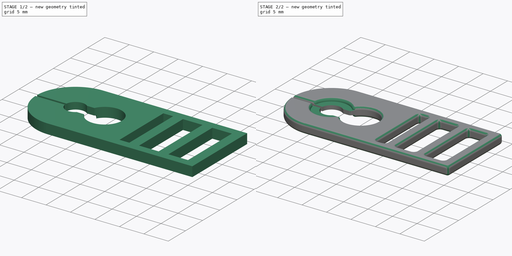
[diagram: build sequence overview — one tinted view per stage of 2, left to right]
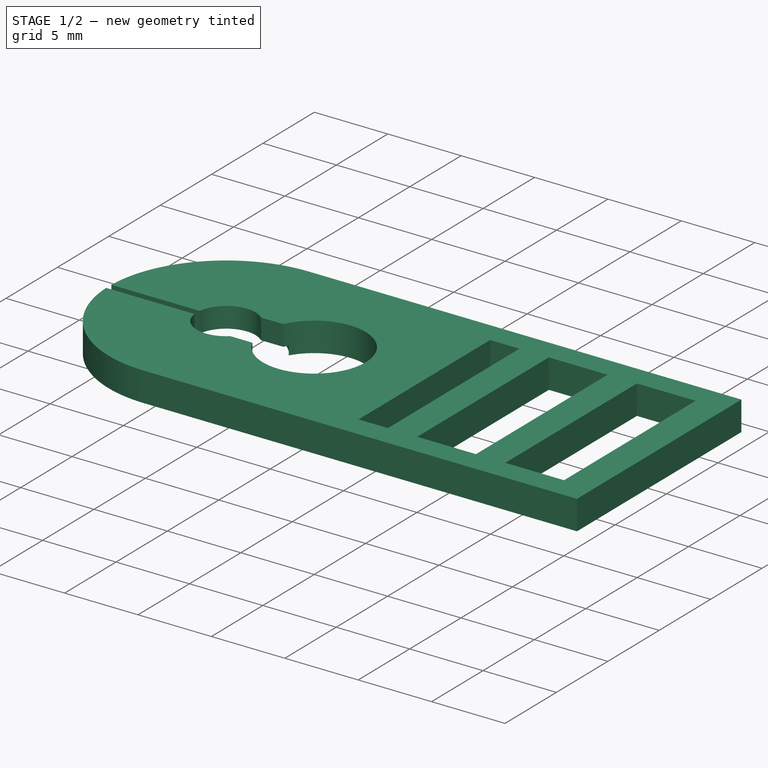
[diagram: stage 1 of 2 — iso view after this stage's code; geometry added in this stage tinted green]
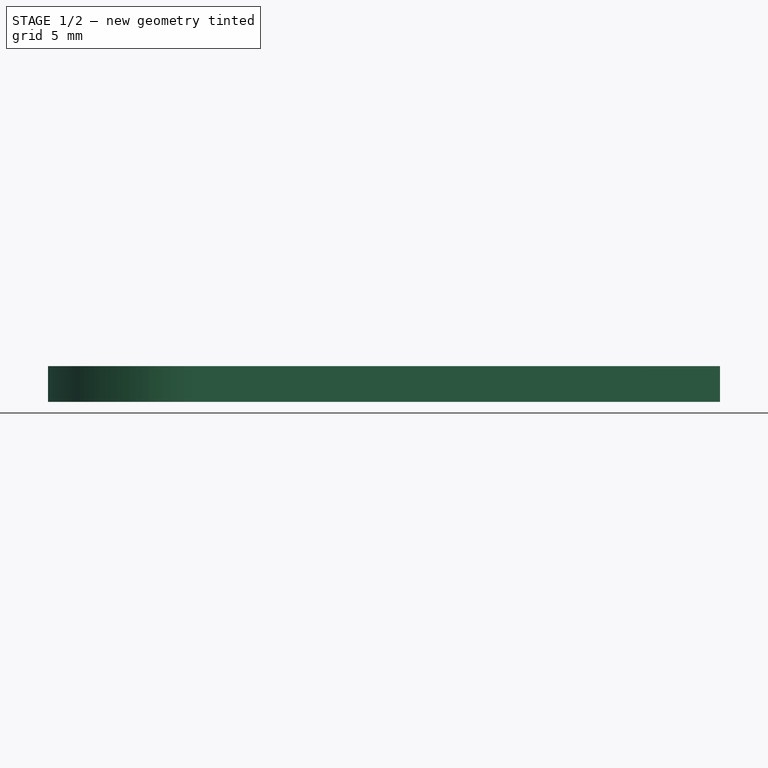
[diagram: stage 1 of 2 — front view after this stage's code; geometry added in this stage tinted green]
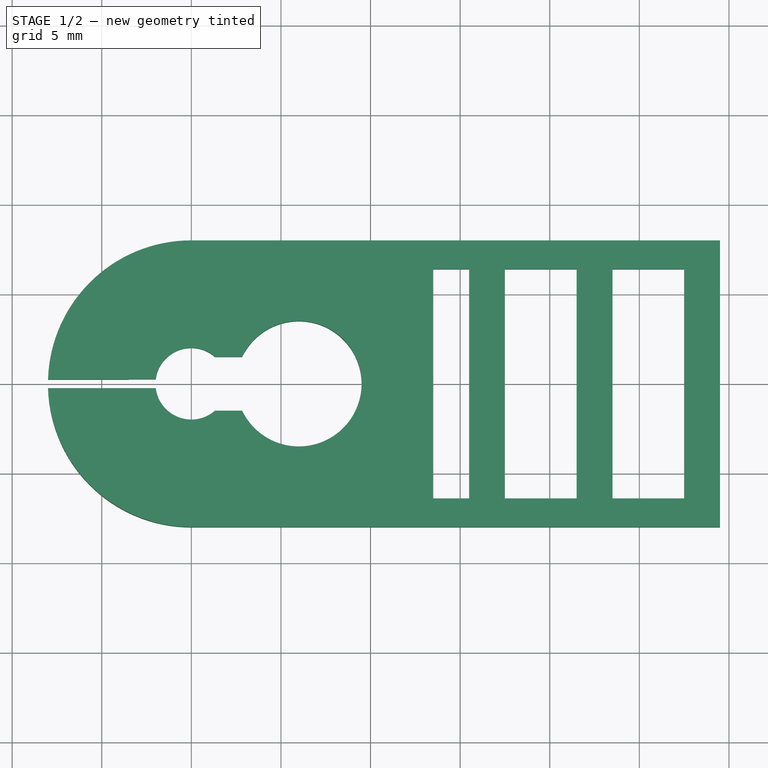
[diagram: stage 1 of 2 — top view after this stage's code; geometry added in this stage tinted green]
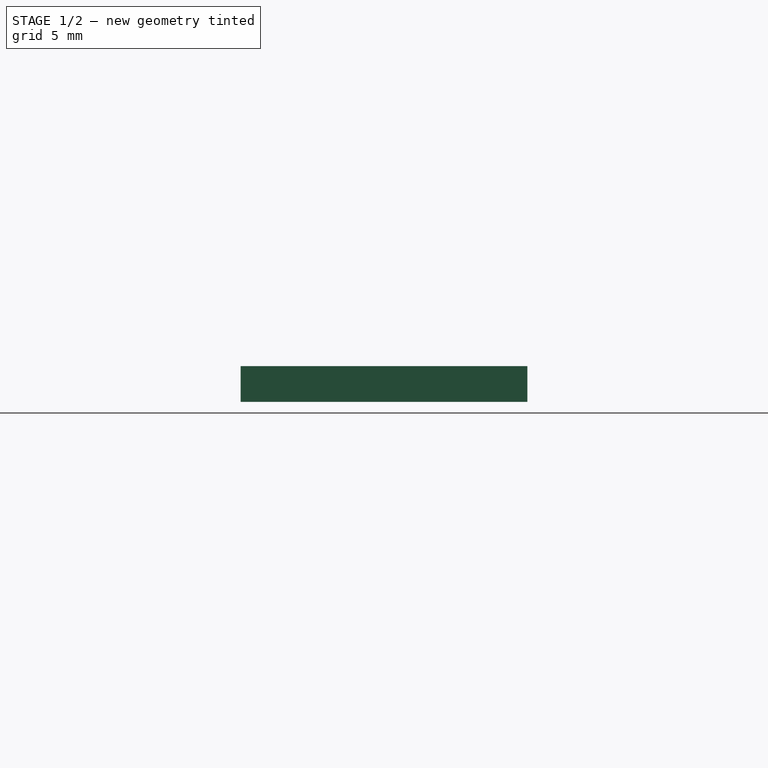
[diagram: stage 1 of 2 — right view after this stage's code; geometry added in this stage tinted green]
FCSTD DOCUMENT  (FreeCAD 0.18.4R)
Label: AbyKulacsBigyo
License: All rights reserved
LicenseURL: http://en.wikipedia.org/wiki/All_rights_reserved
objects: Sketcher::SketchObject×4, PartDesign::Pocket×2, PartDesign::Pad×1, PartDesign::Fillet×1, PartDesign::Body×1, App::Part×1
note: 12 computed .brp shape members not serialized (recipe doc carries the construction recipe); baked Part::Feature solids carry a one-line shape summary decoded from their .brp

FEATURE [Sketcher::SketchObject] Sketch
  MapMode = 5
  Support = -> [XY_Plane001]
  sketch-geometry (27):
    g0: LineSegment StartX=20 StartY=-12 StartZ=0 EndX=49.5 EndY=-12 EndZ=0
    g1: LineSegment StartX=49.5 StartY=-12 StartZ=0 EndX=49.5 EndY=-28 EndZ=0
    g2: LineSegment StartX=49.5 StartY=-28 StartZ=0 EndX=20 EndY=-28 EndZ=0
    g3: LineSegment StartX=20 StartY=-28 StartZ=0 EndX=20 EndY=-12 EndZ=0
    g4: ArcOfCircle CenterX=20 CenterY=-20 CenterZ=0 NormalX=0 NormalY=0 NormalZ=1 AngleXU=0 Radius=8 StartAngle=1.5708 EndAngle=4.71239
    g5: Circle CenterX=20 CenterY=-20 CenterZ=0 NormalX=0 NormalY=0 NormalZ=1 AngleXU=0 Radius=3.5
    g6: Circle CenterX=26 CenterY=-20 CenterZ=0 NormalX=0 NormalY=0 NormalZ=1 AngleXU=0 Radius=3.5
    g7: LineSegment StartX=20 StartY=-20 StartZ=0 EndX=49.5 EndY=-20 EndZ=0
    g8: LineSegment StartX=33.5 StartY=-13.6 StartZ=0 EndX=35.5 EndY=-13.6 EndZ=0
    g9: LineSegment StartX=35.5 StartY=-13.6 StartZ=0 EndX=35.5 EndY=-26.4 EndZ=0
    g10: LineSegment StartX=35.5 StartY=-26.4 StartZ=0 EndX=33.5 EndY=-26.4 EndZ=0
    g11: LineSegment StartX=33.5 StartY=-26.4 StartZ=0 EndX=33.5 EndY=-13.6 EndZ=0
    g12: LineSegment StartX=37.5 StartY=-13.6 StartZ=0 EndX=41.5 EndY=-13.6 EndZ=0
    g13: LineSegment StartX=41.5 StartY=-13.6 StartZ=0 EndX=41.5 EndY=-26.4 EndZ=0
    g14: LineSegment StartX=41.5 StartY=-26.4 StartZ=0 EndX=37.5 EndY=-26.4 EndZ=0
    g15: LineSegment StartX=37.5 StartY=-26.4 StartZ=0 EndX=37.5 EndY=-13.6 EndZ=0
    g16: LineSegment StartX=43.5 StartY=-13.6 StartZ=0 EndX=47.5 EndY=-13.6 EndZ=0
    g17: LineSegment StartX=47.5 StartY=-13.6 StartZ=0 EndX=47.5 EndY=-26.4 EndZ=0
    g18: LineSegment StartX=47.5 StartY=-26.4 StartZ=0 EndX=43.5 EndY=-26.4 EndZ=0
    g19: LineSegment StartX=43.5 StartY=-26.4 StartZ=0 EndX=43.5 EndY=-13.6 EndZ=0
    g20: LineSegment [constr] StartX=35.5 StartY=-13.6 StartZ=0 EndX=37.5 EndY=-13.6 EndZ=0
    g21: LineSegment [constr] StartX=41.5 StartY=-13.6 StartZ=0 EndX=43.5 EndY=-13.6 EndZ=0
    g22: LineSegment [constr] StartX=35.5 StartY=-26.4 StartZ=0 EndX=37.5 EndY=-26.4 EndZ=0
    g23: LineSegment [constr] StartX=41.5 StartY=-26.4 StartZ=0 EndX=43.5 EndY=-26.4 EndZ=0
    g24: LineSegment [constr] StartX=47.5 StartY=-13.6 StartZ=0 EndX=49.5 EndY=-13.6 EndZ=0
    g25: LineSegment [constr] StartX=47.5 StartY=-13.6 StartZ=0 EndX=47.5 EndY=-12 EndZ=0
    g26: LineSegment [constr] StartX=29.5 StartY=-12 StartZ=0 EndX=29.5 EndY=-28 EndZ=0
  constraints (76):
    c: Coincident(g0,g1)
    c: Coincident(g1,g2)
    c: Coincident(g2,g3)
    c: Coincident(g3,g0)
    c: Horizontal(g0)
    c: Horizontal(g2)
    c: Vertical(g1)
    c: Vertical(g3)
    c: PointOnObject(g4,g3)
    c: Coincident(g4,g0)
    c: Coincident(g4,g2)
    c: DistanceY(g1,g1) = 16
    c: Coincident(g5,g4)
    c: Equal(g5,g6)
    c: Coincident(g7,g4)
    c: PointOnObject(g7,g1)
    c: Horizontal(g7)
    c: PointOnObject(g6,g7)
    c: Radius(g5) = 3.5
    c: DistanceX(g4,g6) = 6
    c: Coincident(g8,g9)
    c: Coincident(g9,g10)
    c: Coincident(g10,g11)
    c: Coincident(g11,g8)
    c: Horizontal(g8)
    c: Horizontal(g10)
    c: Vertical(g9)
    c: Coincident(g12,g13)
    c: Coincident(g13,g14)
    c: Coincident(g14,g15)
    c: Coincident(g15,g12)
    c: Horizontal(g12)
    c: Horizontal(g14)
    c: Vertical(g13)
    c: Vertical(g15)
    c: Coincident(g16,g17)
    c: Coincident(g17,g18)
    c: Coincident(g18,g19)
    c: Coincident(g19,g16)
    c: Horizontal(g16)
    c: Horizontal(g18)
    c: Vertical(g17)
    c: Vertical(g19)
    c: DistanceX(g8,g8) = 2
    c: Coincident(g20,g8)
    c: Horizontal(g20)
    c: Coincident(g12,g20)
    c: Coincident(g21,g12)
    c: Coincident(g21,g16)
    c: Horizontal(g21)
    c: Coincident(g22,g9)
    c: Coincident(g22,g14)
    c: Coincident(g23,g13)
    c: Coincident(g23,g18)
    c: Horizontal(g23)
    c: Horizontal(g22)
    c: Symmetric(g8,g10,g7)
    c: Equal(g20,g21)
    c: DistanceX(g20,g20) = 2
    c: Coincident(g24,g16)
    c: PointOnObject(g24,g1)
    c: Horizontal(g24)
    c: Coincident(g25,g16)
    c: PointOnObject(g25,g0)
    c: Vertical(g25)
    c: DistanceX(g25,g0) = 2
    c: PointOnObject(g26,g0)
    c: PointOnObject(g26,g2)
    c: Vertical(g26)
    c: Tangent(g26,g6)
    c: DistanceX(g26,g8) = 4
    c: DistanceY(g4,g-1) = 20
    c: DistanceX(g-1,g4) = 20
    c: DistanceY(g24,g0) = 1.6
    c: Equal(g18,g14)
    c: DistanceX(g12,g12) = 4
FEATURE [Sketcher::SketchObject] Sketch001
  ExternalGeometry = -> [Sketch]
  MapMode = 5
  Support = -> [XY_Plane001]
  sketch-geometry (24):
    g0: LineSegment StartX=12.0039 StartY=-19.75 StartZ=0 EndX=18.0157 EndY=-19.75 EndZ=0
    g1: LineSegment StartX=12.0039 StartY=-20.25 StartZ=0 EndX=18.0157 EndY=-20.25 EndZ=0
    g2: ArcOfCircle CenterX=20 CenterY=-20 CenterZ=0 NormalX=0 NormalY=0 NormalZ=1 AngleXU=0 Radius=8 StartAngle=1.5708 EndAngle=3.11034
    g3: ArcOfCircle CenterX=20 CenterY=-20 CenterZ=0 NormalX=0 NormalY=0 NormalZ=1 AngleXU=0 Radius=8 StartAngle=3.17285 EndAngle=4.71239
    g4: ArcOfCircle CenterX=20 CenterY=-20 CenterZ=0 NormalX=0 NormalY=0 NormalZ=1 AngleXU=0 Radius=2 StartAngle=0.848062 EndAngle=3.01626
    g5: ArcOfCircle CenterX=20 CenterY=-20 CenterZ=0 NormalX=0 NormalY=0 NormalZ=1 AngleXU=0 Radius=2 StartAngle=3.26692 EndAngle=5.43512
    g6: LineSegment StartX=21.3229 StartY=-18.5 StartZ=0 EndX=22.8377 EndY=-18.5 EndZ=0
    g7: LineSegment StartX=21.3229 StartY=-21.5 StartZ=0 EndX=22.8377 EndY=-21.5 EndZ=0
    g8: ArcOfCircle CenterX=26 CenterY=-20 CenterZ=0 NormalX=0 NormalY=0 NormalZ=1 AngleXU=0 Radius=3.5 StartAngle=3.5845 EndAngle=8.98187
    g9: LineSegment StartX=20 StartY=-12 StartZ=0 EndX=49.5 EndY=-12 EndZ=0
    g10: LineSegment StartX=49.5 StartY=-12 StartZ=0 EndX=49.5 EndY=-28 EndZ=0
    g11: LineSegment StartX=49.5 StartY=-28 StartZ=0 EndX=20 EndY=-28 EndZ=0
    g12: LineSegment StartX=33.5 StartY=-13.6 StartZ=0 EndX=35.5 EndY=-13.6 EndZ=0
    g13: LineSegment StartX=35.5 StartY=-13.6 StartZ=0 EndX=35.5 EndY=-26.4 EndZ=0
    g14: LineSegment StartX=35.5 StartY=-26.4 StartZ=0 EndX=33.5 EndY=-26.4 EndZ=0
    g15: LineSegment StartX=33.5 StartY=-26.4 StartZ=0 EndX=33.5 EndY=-13.6 EndZ=0
    g16: LineSegment StartX=37.5 StartY=-13.6 StartZ=0 EndX=41.5 EndY=-13.6 EndZ=0
    g17: LineSegment StartX=41.5 StartY=-13.6 StartZ=0 EndX=41.5 EndY=-26.4 EndZ=0
    g18: LineSegment StartX=41.5 StartY=-26.4 StartZ=0 EndX=37.5 EndY=-26.4 EndZ=0
    g19: LineSegment StartX=37.5 StartY=-26.4 StartZ=0 EndX=37.5 EndY=-13.6 EndZ=0
    g20: LineSegment StartX=43.5 StartY=-13.6 StartZ=0 EndX=47.5 EndY=-13.6 EndZ=0
    g21: LineSegment StartX=47.5 StartY=-13.6 StartZ=0 EndX=47.5 EndY=-26.4 EndZ=0
    g22: LineSegment StartX=47.5 StartY=-26.4 StartZ=0 EndX=43.5 EndY=-26.4 EndZ=0
    g23: LineSegment StartX=43.5 StartY=-26.4 StartZ=0 EndX=43.5 EndY=-13.6 EndZ=0
  constraints (61):
    c: Horizontal(g0)
    c: Horizontal(g1)
    c: Coincident(g2,g-13)
    c: Coincident(g2,g0)
    c: Coincident(g2,g-3)
    c: Coincident(g3,g2)
    c: Coincident(g3,g1)
    c: Coincident(g3,g-3)
    c: Coincident(g4,g2)
    c: Coincident(g4,g0)
    c: Coincident(g5,g2)
    c: Coincident(g5,g1)
    c: Symmetric(g0,g1,g-13)
    c: Radius(g4) = 2
    c: DistanceY(g1,g0) = 0.5
    c: Coincident(g6,g4)
    c: PointOnObject(g6,g-8)
    c: Horizontal(g6)
    c: Coincident(g7,g5)
    c: Horizontal(g7)
    c: Coincident(g8,g-8)
    c: Coincident(g8,g6)
    c: Coincident(g8,g7)
    c: DistanceY(g5,g4) = 3
    c: Equal(g6,g7)
    c: Coincident(g9,g2)
    c: Coincident(g9,g-4)
    c: Coincident(g10,g9)
    c: Coincident(g10,g-4)
    c: Coincident(g11,g10)
    c: Coincident(g11,g3)
    c: Coincident(g12,g13)
    c: Coincident(g13,g14)
    c: Coincident(g14,g15)
    c: Coincident(g15,g12)
    c: Horizontal(g12)
    c: Horizontal(g14)
    c: Vertical(g13)
    c: Vertical(g15)
    c: Coincident(g12,g-7)
    c: Coincident(g13,g-10)
    c: Coincident(g16,g17)
    c: Coincident(g17,g18)
    c: Coincident(g18,g19)
    c: Coincident(g19,g16)
    c: Horizontal(g16)
    c: Horizontal(g18)
    c: Vertical(g17)
    c: Vertical(g19)
    c: Coincident(g16,g-6)
    c: Coincident(g17,g-11)
    c: Coincident(g20,g21)
    c: Coincident(g21,g22)
    c: Coincident(g22,g23)
    c: Coincident(g23,g20)
    c: Horizontal(g20)
    c: Horizontal(g22)
    c: Vertical(g21)
    c: Vertical(g23)
    c: Coincident(g20,g-5)
    c: Coincident(g21,g-12)
FEATURE [PartDesign::Pad] Pad
  Length = 2
  Length2 = 100
  Profile = -> Sketch001
  Type = 0
FEATURE [Sketcher::SketchObject] Sketch002
  ExternalGeometry = -> [Sketch]
  MapMode = 5
  Support = -> [XY_Plane001]
  sketch-geometry (1):
    g0: Circle CenterX=20 CenterY=-20 CenterZ=0 NormalX=0 NormalY=0 NormalZ=1 AngleXU=0 Radius=3.5
  constraints (2):
    c: Coincident(g0,g-3)
    c: Equal(g0,g-3)
FEATURE [Sketcher::SketchObject] Sketch003
  AttachmentOffset = pos=(0,0,2) rot=(0,0,1;0rad)
  ExternalGeometry = -> [Sketch]
  MapMode = 5
  Placement = pos=(0,0,2) rot=(0,0,1;0rad)
  Support = -> [XY_Plane001]
  expr: AttachmentOffset.Base.z = Pad.Length
  sketch-geometry (1):
    g0: Circle CenterX=20 CenterY=-20 CenterZ=0 NormalX=0 NormalY=0 NormalZ=1 AngleXU=0 Radius=3.5
  constraints (2):
    c: Coincident(g0,g-3)
    c: Equal(g0,g-3)
FEATURE [PartDesign::Pocket] Pocket
  BaseFeature = -> Pad
  Length = 0.6
  Length2 = 100
  Profile = -> Sketch002
  Reversed = true
  Type = 0
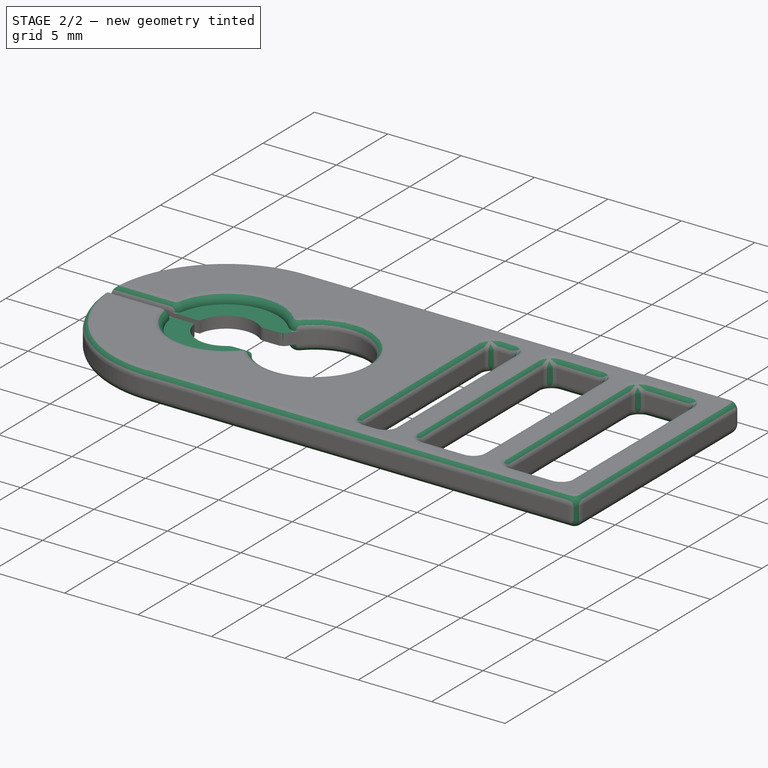
[diagram: stage 2 of 2 — iso view after this stage's code; geometry added in this stage tinted green]
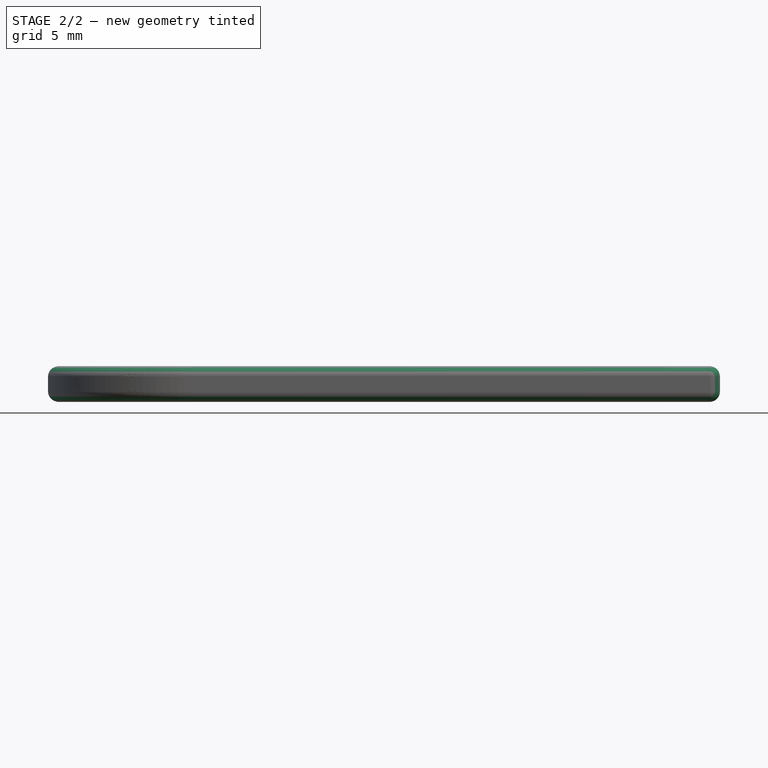
[diagram: stage 2 of 2 — front view after this stage's code; geometry added in this stage tinted green]
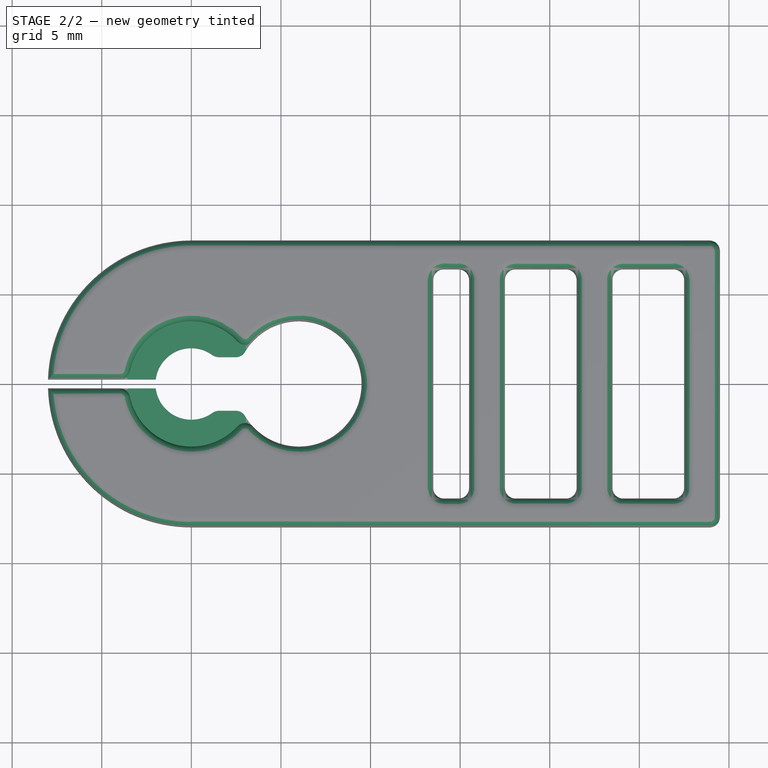
[diagram: stage 2 of 2 — top view after this stage's code; geometry added in this stage tinted green]
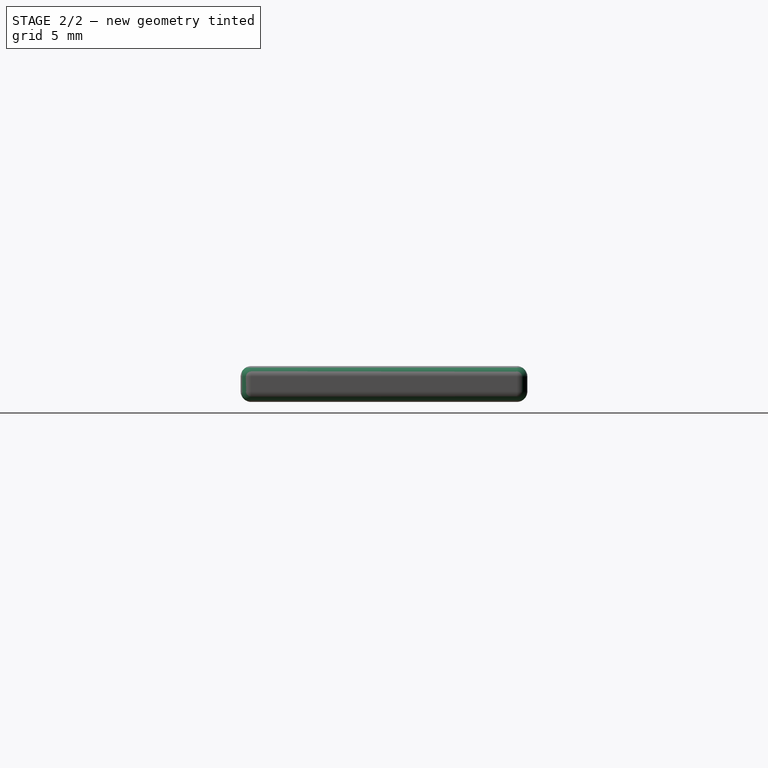
[diagram: stage 2 of 2 — right view after this stage's code; geometry added in this stage tinted green]
FEATURE [PartDesign::Pocket] Pocket001
  BaseFeature = -> Pocket
  Length = 0.6
  Length2 = 100
  Profile = -> Sketch003
  Type = 0
FEATURE [PartDesign::Fillet] Fillet
  Base = -> Pocket001 [Face5,Face4,Edge79,Edge83,Edge87,Edge89,Edge80,Edge84,Edge88,Edge82,Edge86,Edge90,Edge81,Edge85,Edge72,Edge75,Edge55,Edge64,Edge74,Edge77,Edge5,Edge53,Edge9,Edge67,Edge71,Edge13,Edge60,Edge94]
  BaseFeature = -> Pocket001
  Radius = 0.59
FEATURE [PartDesign::Body] Body
  Group = -> [Sketch,Sketch001,Pad,Sketch002,Pocket,Sketch003,Pocket001,Fillet]
  Origin = -> Origin001
  Tip = -> Fillet
FEATURE [App::Part] Part
  Group = -> [Body]
  Origin = -> Origin
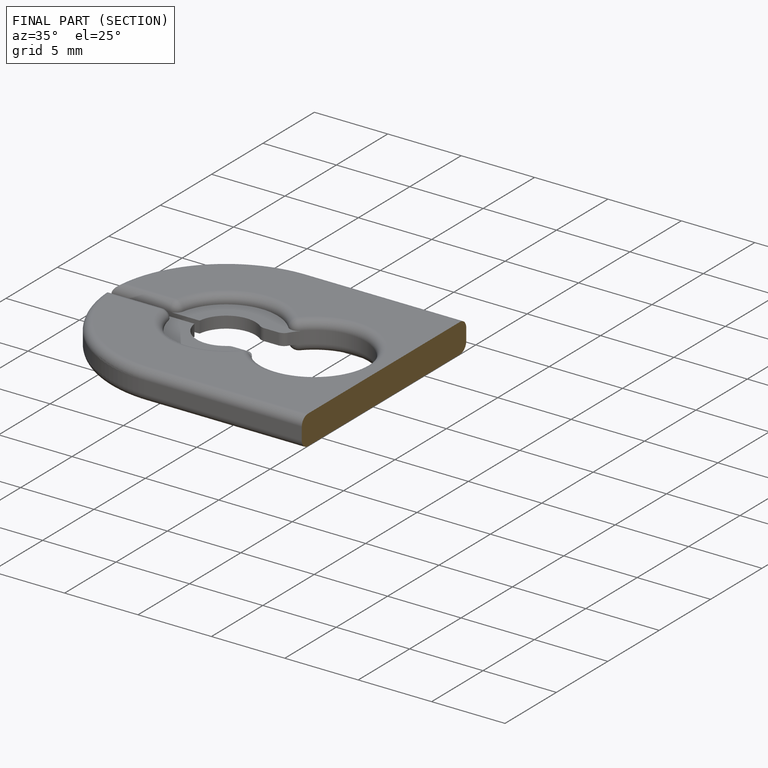
[diagram: finished part — half-section view (interior)]
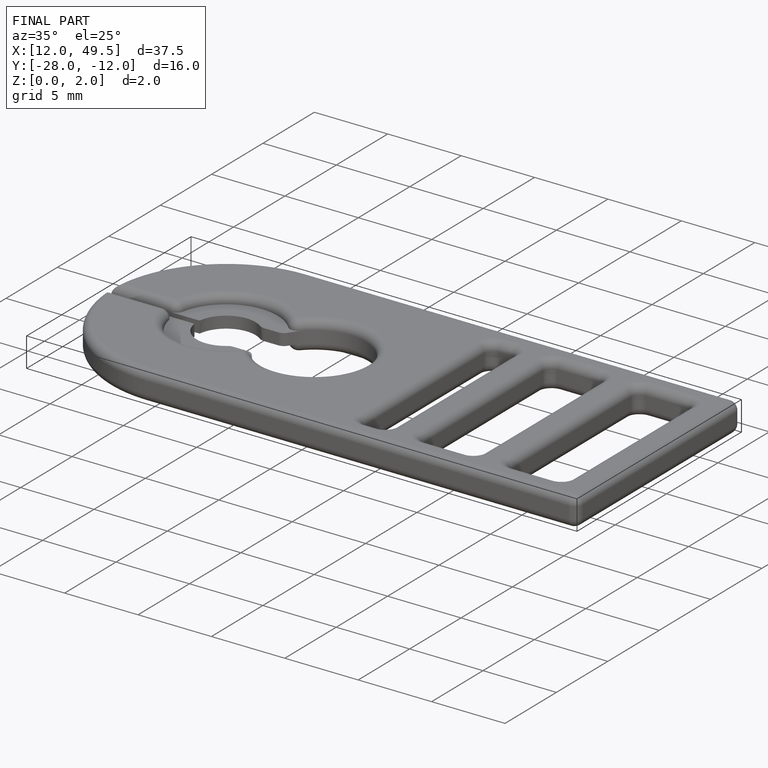
[diagram: finished part — iso view with bounding-box wireframe]
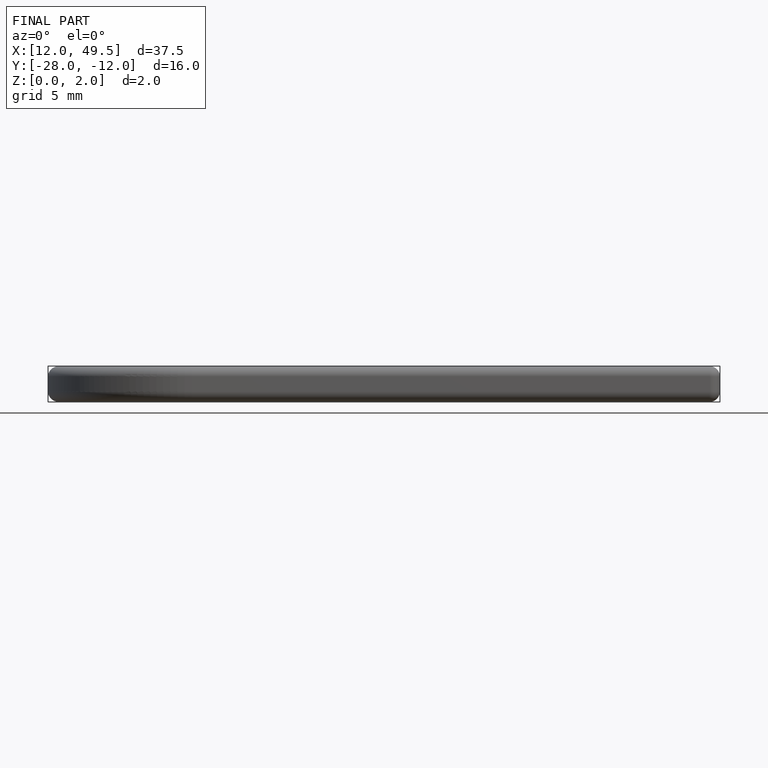
[diagram: finished part — front view with bounding-box wireframe]
